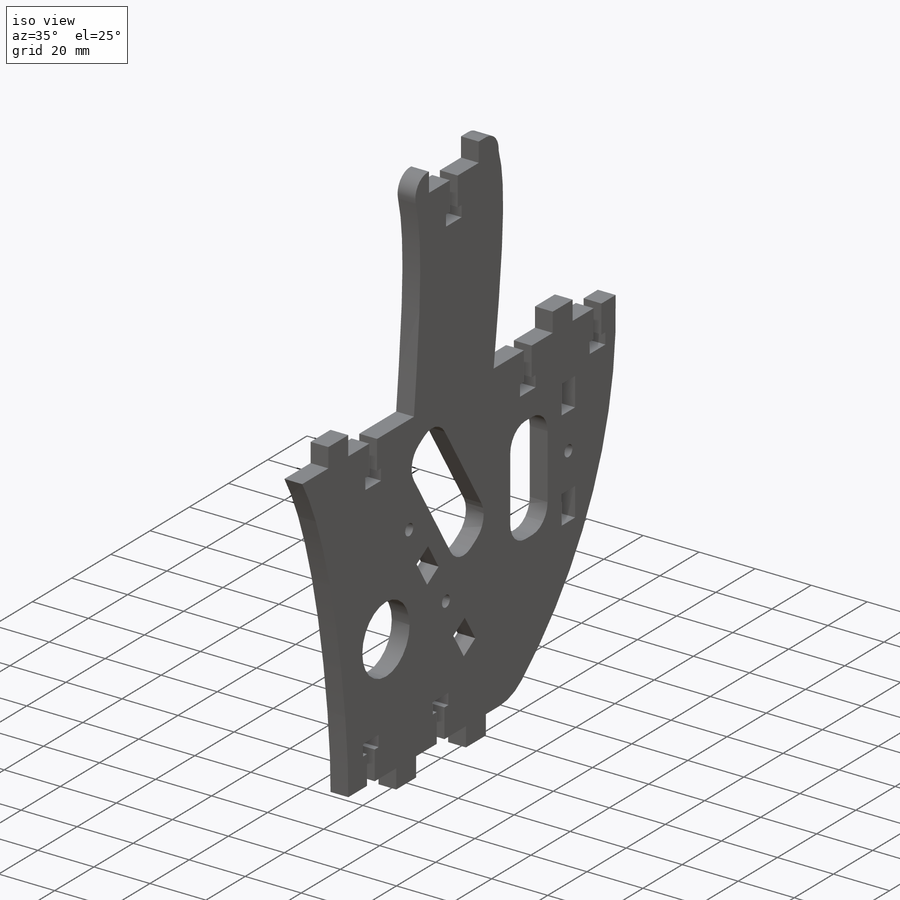
[diagram: iso view]
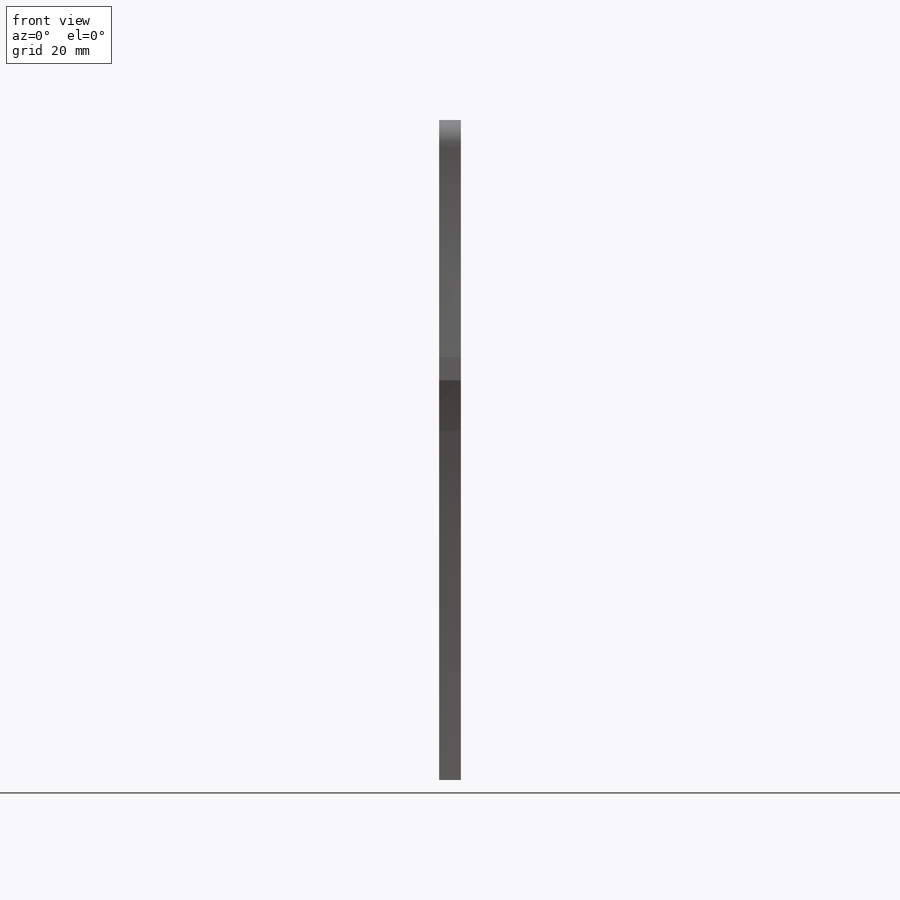
[diagram: front view]
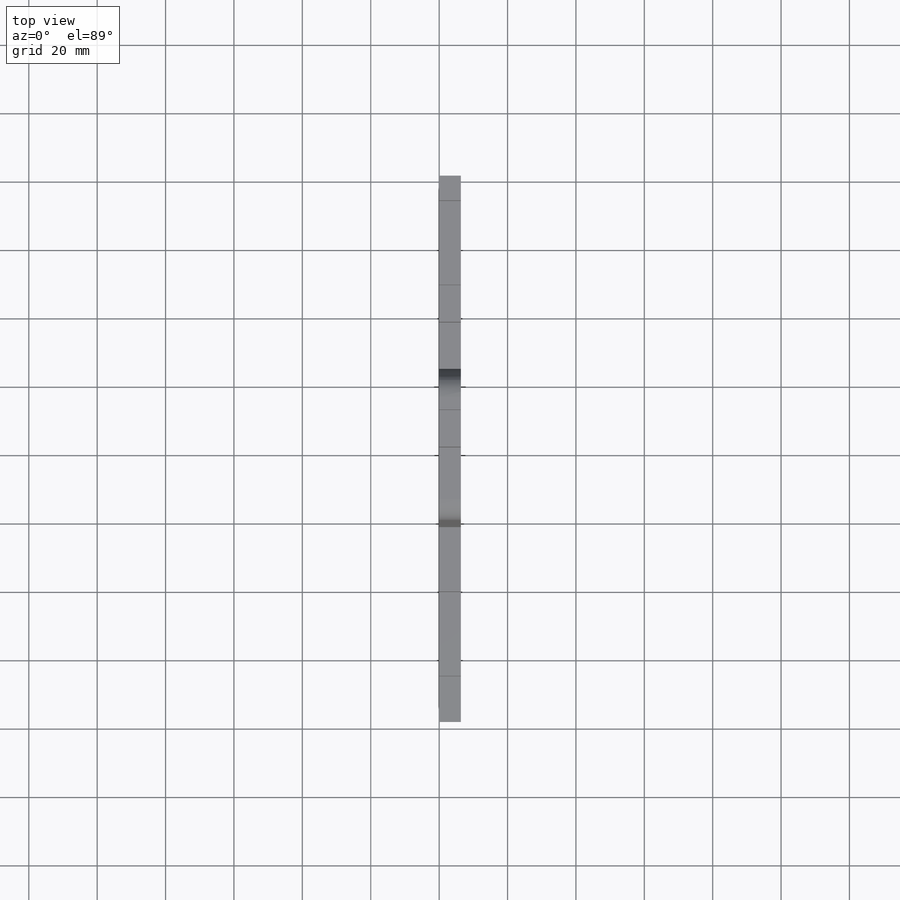
[diagram: top view]
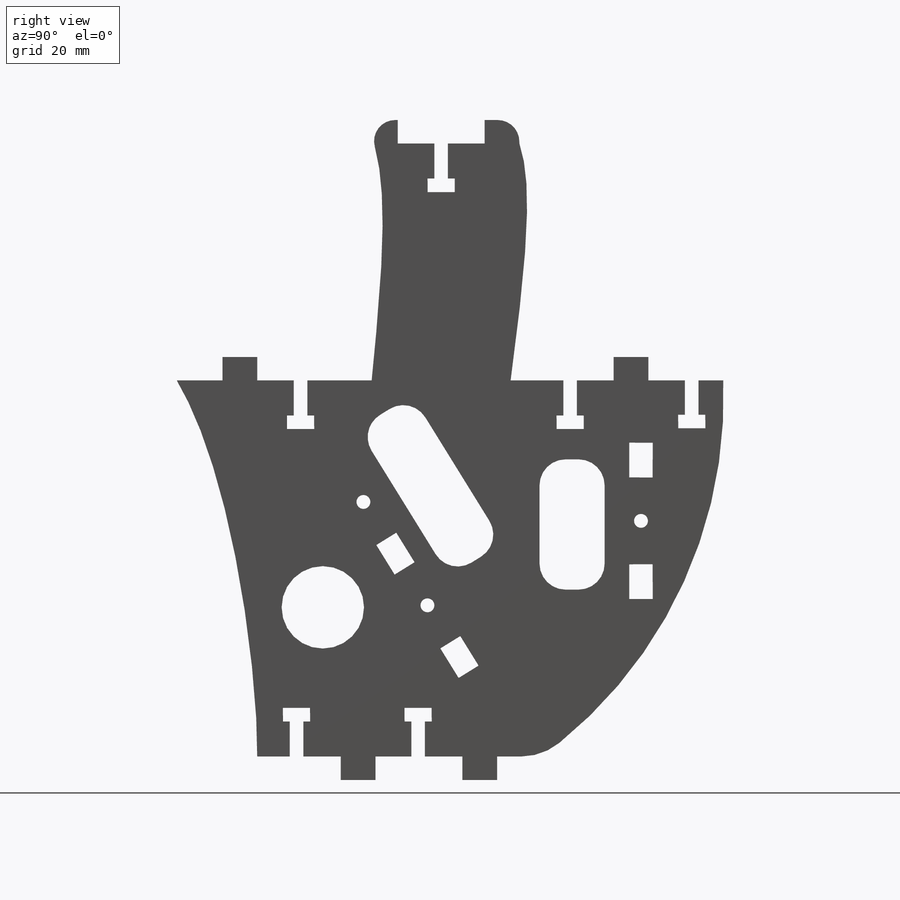
[diagram: right view]
SOLIDWORKS PART (.sldprt)
format: sldprt  version: not decoded by parser v0  size: 418,816 bytes
history: native  units: mm
features: fillet x3, sketch x2, material x1, extrude x1 + 17 further entries (+11 scaffold rows collapsed)
feature tree (35):
  scaffold x11  (default folders/planes/origin — collapsed)
  material  "Material <not specified>"
  sketch  "Sketch1"  dims[c1.D1=~3.96875mm c1.D2=7.9375mm c1.D3=10.0mm c1.D4=~3.96875mm c2.D3=14.224mm c2.D5=5.08mm]
  "Block2-3"
  sketch  "Block2"  dims[D1=6.858mm D2=10.16mm]
  "Block1-8"
  "Block2-6"
  "Block2-11"
  "Block2-12"
  "Block2-14"
  "Block2-15"
  "Block2-16"
  "Block2-17"
  "Block1-15"
  "Block2-21"
  "Block2-22"
  "Block1-19"
  "Block1-20"
  "Block2-25"
  "Block2-26"
  "Block1-21"
  extrude  "Extrude1"  Depth=6.35mm
  fillet  "Fillet3"  Radius=17.78mm
  fillet  "Fillet8"  Radius=6.1976mm
  fillet  "Fillet10"  Radius=6.35mm
decode coverage: 6 of 6 modeling features carry decoded parameters; 17 rows unclassified (native names shown)
note: ~ marks probable driven/reference dimensions
note: suppression state not decoded; provenance and decode notes live in map.json
